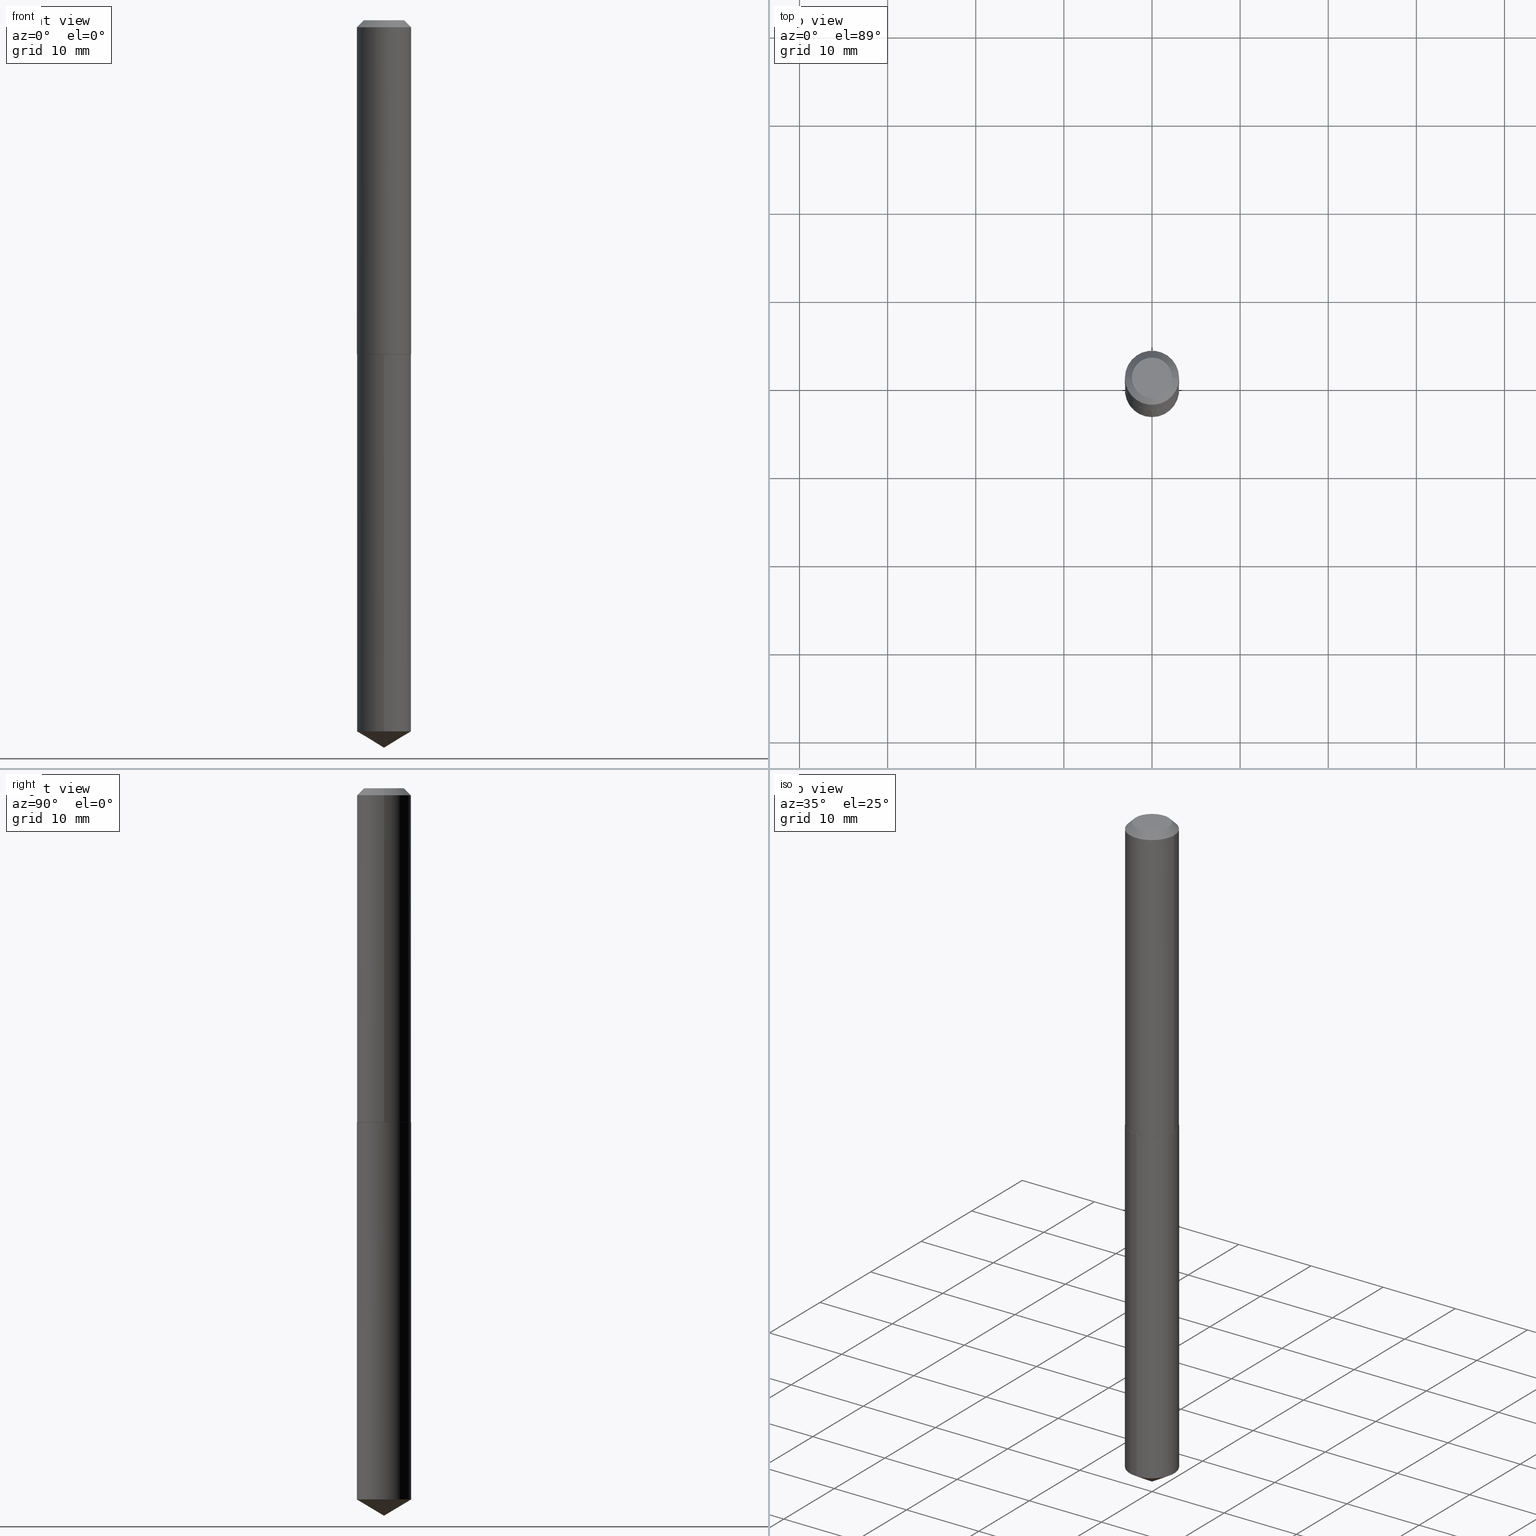
[diagram: canonical four-view strip — front | top / right | iso, engineering-drawing reading convention]
A machine part, canonical four-view strip (front | top / right | iso — engineering-drawing reading convention). The complete STEP part file that produces these views, byte-faithful:
ISO-10303-21;
HEADER;
FILE_DESCRIPTION (( 'STEP AP203' ),
    '1' );
FILE_NAME ('57173.STEP',
    '2024-04-22T23:23:38',
    ( '' ),
    ( '' ),
    'SwSTEP 2.0',
    'SolidWorks 2023',
    '' );
FILE_SCHEMA (( 'CONFIG_CONTROL_DESIGN' ));
ENDSEC;

DATA;
#1 =( GEOMETRIC_REPRESENTATION_CONTEXT ( 3 ) GLOBAL_UNCERTAINTY_ASSIGNED_CONTEXT ( ( #226 ) ) GLOBAL_UNIT_ASSIGNED_CONTEXT ( ( #97, #183, #374 ) ) REPRESENTATION_CONTEXT ( 'NONE', 'WORKASPACE' ) );
#2 = EDGE_CURVE ( 'NONE', #210, #283, #114, .T. ) ;
#3 = FACE_OUTER_BOUND ( 'NONE', #156, .T. ) ;
#4 = DIRECTION ( 'NONE',  ( 2.445468806185136597E-29, -3.491481338843145583E-15, -1.000000000000000000 ) ) ;
#5 = FACE_OUTER_BOUND ( 'NONE', #345, .T. ) ;
#6 = CIRCLE ( 'NONE', #317, 0.08975000000000001033 ) ;
#7 = EDGE_CURVE ( 'NONE', #283, #144, #314, .T. ) ;
#8 = ORIENTED_EDGE ( 'NONE', *, *, #30, .T. ) ;
#9 = COORDINATED_UNIVERSAL_TIME_OFFSET ( 5, 0, .BEHIND. ) ;
#10 = LOCAL_TIME ( 19, 23, 38.00000000000000000, #9 ) ;
#11 = CALENDAR_DATE ( 2024, 22, 4 ) ;
#12 = APPROVAL_STATUS ( 'not_yet_approved' ) ;
#13 = APPROVAL_PERSON_ORGANIZATION ( #151, #273, #347 ) ;
#14 = ORIENTED_EDGE ( 'NONE', *, *, #297, .F. ) ;
#15 = EDGE_CURVE ( 'NONE', #282, #213, #17, .T. ) ;
#16 = VECTOR ( 'NONE', #373, 39.37007874015748143 ) ;
#17 = LINE ( 'NONE', #342, #279 ) ;
#18 = CC_DESIGN_PERSON_AND_ORGANIZATION_ASSIGNMENT ( #23, #91, ( #34 ) ) ;
#19 = PERSON_AND_ORGANIZATION ( #383, #200 ) ;
#20 = DIRECTION ( 'NONE',  ( -6.982962677686264344E-15, -1.000000000000000000, 4.515451229197129137E-15 ) ) ;
#21 = ORIENTED_EDGE ( 'NONE', *, *, #15, .F. ) ;
#22 = PLANE ( 'NONE',  #338 ) ;
#23 = PERSON_AND_ORGANIZATION ( #383, #200 ) ;
#24 = ORIENTED_EDGE ( 'NONE', *, *, #58, .T. ) ;
#25 = CONICAL_SURFACE ( 'NONE', #222, 0.1210000000000000242, 0.7853981633974452814 ) ;
#26 = CARTESIAN_POINT ( 'NONE',  ( 7.769800488265220170E-29, -1.109372332207538747E-14, -3.177295865097665484 ) ) ;
#27 = SECURITY_CLASSIFICATION ( '', '', #355 ) ;
#28 = DIRECTION ( 'NONE',  ( -0.7071067811865715536, 7.493145998870439357E-15, 0.7071067811865232589 ) ) ;
#29 = DIRECTION ( 'NONE',  ( 1.000000000000000000, -6.982962677686266711E-15, 0.000000000000000000 ) ) ;
#30 = EDGE_CURVE ( 'NONE', #299, #292, #259, .T. ) ;
#31 = AXIS2_PLACEMENT_3D ( 'NONE', #42, #4, #334 ) ;
#32 = AXIS2_PLACEMENT_3D ( 'NONE', #157, #128, #242 ) ;
#33 = EDGE_CURVE ( 'NONE', #292, #118, #84, .T. ) ;
#34 = PRODUCT_DEFINITION_FORMATION_WITH_SPECIFIED_SOURCE ( 'ANY', '', #255, .NOT_KNOWN. ) ;
#35 = LINE ( 'NONE', #36, #366 ) ;
#36 = CARTESIAN_POINT ( 'NONE',  ( -0.1210000000000000242, 7.358296921611893922E-16, -0.03125000000000020123 ) ) ;
#37 = CLOSED_SHELL ( 'NONE', ( #330, #47, #343, #386, #356, #178, #349, #160 ) ) ;
#38 = CARTESIAN_POINT ( 'NONE',  ( 3.648639458828223995E-29, -5.209290157553973331E-15, -1.491999999999999993 ) ) ;
#39 = AXIS2_PLACEMENT_3D ( 'NONE', #38, #46, #77 ) ;
#40 = MANIFOLD_SOLID_BREP ( 'Body-Move/Copy2[1]', #205 ) ;
#41 = CYLINDRICAL_SURFACE ( 'NONE', #332, 0.1210000000000000103 ) ;
#42 = CARTESIAN_POINT ( 'NONE',  ( 7.642090019328600035E-31, -1.091087918388489897E-16, -0.03125000000000020123 ) ) ;
#43 = ORIENTED_EDGE ( 'NONE', *, *, #197, .T. ) ;
#44 = CARTESIAN_POINT ( 'NONE',  ( 3.647416724425131194E-29, -5.207544416884551827E-15, -1.491500000000000270 ) ) ;
#45 = CIRCLE ( 'NONE', #103, 0.1210000000000000103 ) ;
#46 = DIRECTION ( 'NONE',  ( -2.445363520308743340E-29, 3.491632114210640844E-15, 1.000000000000000000 ) ) ;
#47 = ADVANCED_FACE ( 'NONE', ( #316 ), #380, .T. ) ;
#48 = ORIENTED_EDGE ( 'NONE', *, *, #2, .F. ) ;
#49 = PERSON_AND_ORGANIZATION_ROLE ( 'design_owner' ) ;
#50 = DIRECTION ( 'NONE',  ( -2.445468806185136877E-29, 3.491481338843145188E-15, 1.000000000000000000 ) ) ;
#51 = CARTESIAN_POINT ( 'NONE',  ( 0.1210000000000000242, -9.392290495692044923E-16, -0.03125000000000020123 ) ) ;
#52 = CC_DESIGN_DATE_AND_TIME_ASSIGNMENT ( #321, #148, ( #27 ) ) ;
#53 = APPLICATION_CONTEXT ( 'configuration controlled 3d designs of mechanical parts and assemblies' ) ;
#54 = AXIS2_PLACEMENT_3D ( 'NONE', #305, #363, #284 ) ;
#55 = ORIENTED_EDGE ( 'NONE', *, *, #258, .F. ) ;
#56 = VERTEX_POINT ( 'NONE', #74 ) ;
#57 = VERTEX_POINT ( 'NONE', #221 ) ;
#58 = EDGE_CURVE ( 'NONE', #282, #292, #300, .T. ) ;
#59 = CC_DESIGN_PERSON_AND_ORGANIZATION_ASSIGNMENT ( #19, #376, ( #34 ) ) ;
#60 = COORDINATED_UNIVERSAL_TIME_OFFSET ( 5, 0, .BEHIND. ) ;
#61 = DIRECTION ( 'NONE',  ( -2.445468806185136597E-29, 3.491481338843145583E-15, 1.000000000000000000 ) ) ;
#62 = AXIS2_PLACEMENT_3D ( 'NONE', #102, #219, #327 ) ;
#63 = FACE_OUTER_BOUND ( 'NONE', #133, .T. ) ;
#64 = DIRECTION ( 'NONE',  ( 2.445363520308742500E-29, -3.491632114210641238E-15, -1.000000000000000000 ) ) ;
#65 = DIRECTION ( 'NONE',  ( 1.000000000000000000, -6.982962677686265133E-15, 0.000000000000000000 ) ) ;
#66 = CYLINDRICAL_SURFACE ( 'NONE', #192, 0.1210000000000001075 ) ;
#67 = DATE_AND_TIME ( #141, #10 ) ;
#68 = CARTESIAN_POINT ( 'NONE',  ( 3.648639458828223995E-29, -5.209290157553973331E-15, -1.491999999999999993 ) ) ;
#69 = CARTESIAN_POINT ( 'NONE',  ( 3.648639458828223995E-29, -5.209290157553973331E-15, -1.491999999999999993 ) ) ;
#70 = DIRECTION ( 'NONE',  ( -2.445468806185136597E-29, 3.491481338843145583E-15, 1.000000000000000000 ) ) ;
#71 = CARTESIAN_POINT ( 'NONE',  ( 0.1210000000000001907, -6.052482900884591109E-15, -1.491500000000000270 ) ) ;
#72 = FACE_OUTER_BOUND ( 'NONE', #368, .T. ) ;
#73 = CARTESIAN_POINT ( 'NONE',  ( 0.1210000000000000242, -9.540472758388873963E-16, -0.03125000000000020123 ) ) ;
#74 = CARTESIAN_POINT ( 'NONE',  ( -0.1210000000000001907, -4.347787706614829839E-15, -1.491500000000000270 ) ) ;
#75 = ORIENTED_EDGE ( 'NONE', *, *, #7, .F. ) ;
#76 = FACE_OUTER_BOUND ( 'NONE', #119, .T. ) ;
#77 = DIRECTION ( 'NONE',  ( -6.982962677686264344E-15, -1.000000000000000000, 4.515451229197129137E-15 ) ) ;
#78 = APPROVAL_STATUS ( 'not_yet_approved' ) ;
#79 = COORDINATED_UNIVERSAL_TIME_OFFSET ( 5, 0, .BEHIND. ) ;
#80 = AXIS2_PLACEMENT_3D ( 'NONE', #388, #130, #109 ) ;
#81 = EDGE_LOOP ( 'NONE', ( #337, #298, #353, #48 ) ) ;
#82 = MECHANICAL_CONTEXT ( 'NONE', #211, 'mechanical' ) ;
#83 = CARTESIAN_POINT ( 'NONE',  ( 0.1210000000000001907, -6.052482900884591109E-15, -1.491500000000000270 ) ) ;
#84 = LINE ( 'NONE', #231, #256 ) ;
#85 = ORIENTED_EDGE ( 'NONE', *, *, #33, .F. ) ;
#86 = CARTESIAN_POINT ( 'NONE',  ( -0.1210000000000000242, -1.798569894091978081E-15, -0.03125000000000020123 ) ) ;
#87 = CIRCLE ( 'NONE', #246, 0.1210000000000001907 ) ;
#88 = ORIENTED_EDGE ( 'NONE', *, *, #33, .T. ) ;
#89 = ADVANCED_FACE ( 'NONE', ( #63 ), #167, .T. ) ;
#90 = PRODUCT_DEFINITION ( 'UNKNOWN', '', #34, #126 ) ;
#91 = PERSON_AND_ORGANIZATION_ROLE ( 'design_supplier' ) ;
#92 = DIRECTION ( 'NONE',  ( 6.090539988449780802E-15, 0.8571673007021143320, 0.5150380749100504918 ) ) ;
#93 = CIRCLE ( 'NONE', #385, 0.08975000000000001033 ) ;
#94 = VERTEX_POINT ( 'NONE', #86 ) ;
#95 = DIRECTION ( 'NONE',  ( -2.445468806185136597E-29, 3.491481338843145583E-15, 1.000000000000000000 ) ) ;
#96 = ORIENTED_EDGE ( 'NONE', *, *, #58, .F. ) ;
#97 =( CONVERSION_BASED_UNIT ( 'INCH', #237 ) LENGTH_UNIT ( ) NAMED_UNIT ( #291 ) );
#98 = CARTESIAN_POINT ( 'NONE',  ( 3.648639458828223995E-29, -5.209290157553973331E-15, -1.491999999999999993 ) ) ;
#99 = CARTESIAN_POINT ( 'NONE',  ( 7.642090019328600035E-31, -1.091087918388489897E-16, -0.03125000000000020123 ) ) ;
#100 = DIRECTION ( 'NONE',  ( 1.000000000000000000, -6.982962677686265922E-15, 0.000000000000000000 ) ) ;
#101 = LOCAL_TIME ( 19, 23, 38.00000000000000000, #60 ) ;
#102 = CARTESIAN_POINT ( 'NONE',  ( 3.648639458828223995E-29, -5.209290157553973331E-15, -1.491999999999999993 ) ) ;
#103 = AXIS2_PLACEMENT_3D ( 'NONE', #69, #272, #276 ) ;
#104 = EDGE_CURVE ( 'NONE', #108, #57, #6, .T. ) ;
#105 = CALENDAR_DATE ( 2024, 22, 4 ) ;
#106 = DIRECTION ( 'NONE',  ( 1.000000000000000000, -6.982962677686266711E-15, 0.000000000000000000 ) ) ;
#107 = VECTOR ( 'NONE', #203, 39.37007874015748854 ) ;
#108 = VERTEX_POINT ( 'NONE', #377 ) ;
#109 = DIRECTION ( 'NONE',  ( 1.000000000000000000, -6.982962677686265922E-15, 4.876176775795935793E-29 ) ) ;
#110 = ORIENTED_EDGE ( 'NONE', *, *, #241, .T. ) ;
#111 = VECTOR ( 'NONE', #115, 39.37007874015748854 ) ;
#112 = APPROVAL ( #12, 'UNSPECIFIED' ) ;
#113 = AXIS2_PLACEMENT_3D ( 'NONE', #177, #277, #106 ) ;
#114 = LINE ( 'NONE', #83, #107 ) ;
#115 = DIRECTION ( 'NONE',  ( -5.985567269335945224E-15, -0.8571673007021107793, 0.5150380749100564870 ) ) ;
#116 = DIRECTION ( 'NONE',  ( -2.445363520308743340E-29, 3.491632114210640844E-15, 1.000000000000000000 ) ) ;
#117 = PERSON_AND_ORGANIZATION ( #383, #200 ) ;
#118 = VERTEX_POINT ( 'NONE', #236 ) ;
#119 = EDGE_LOOP ( 'NONE', ( #176, #110, #341, #127 ) ) ;
#120 = ORIENTED_EDGE ( 'NONE', *, *, #286, .T. ) ;
#121 = DIRECTION ( 'NONE',  ( 1.000000000000000000, -6.982962677686267499E-15, 4.876187661634337776E-29 ) ) ;
#122 = DIRECTION ( 'NONE',  ( -0.7071067811865453523, 2.468850131082234184E-15, -0.7071067811865496822 ) ) ;
#123 = CC_DESIGN_DATE_AND_TIME_ASSIGNMENT ( #67, #135, ( #90 ) ) ;
#124 = CARTESIAN_POINT ( 'NONE',  ( -5.989671091818642381E-48, 8.551662891793931527E-34, 2.449293598294701954E-19 ) ) ;
#125 = DIRECTION ( 'NONE',  ( -1.000000000000000000, 6.982962677686266711E-15, 0.000000000000000000 ) ) ;
#126 = DESIGN_CONTEXT ( 'detailed design', #53, 'design' ) ;
#127 = ORIENTED_EDGE ( 'NONE', *, *, #361, .F. ) ;
#128 = DIRECTION ( 'NONE',  ( -2.445468806185136597E-29, 3.491481338843145583E-15, 1.000000000000000000 ) ) ;
#129 = CC_DESIGN_PERSON_AND_ORGANIZATION_ASSIGNMENT ( #215, #328, ( #27 ) ) ;
#130 = DIRECTION ( 'NONE',  ( -2.438088387897960049E-29, 3.491481338843145188E-15, 1.000000000000000000 ) ) ;
#131 = CARTESIAN_POINT ( 'NONE',  ( -2.994835545909321190E-48, 4.275831445896965764E-34, 1.224646799147350977E-19 ) ) ;
#132 = CARTESIAN_POINT ( 'NONE',  ( 0.000000000000000000, 0.000000000000000000, 0.000000000000000000 ) ) ;
#133 = EDGE_LOOP ( 'NONE', ( #21, #24, #88, #171 ) ) ;
#134 = CARTESIAN_POINT ( 'NONE',  ( 3.647416724425131194E-29, -5.207544416884551827E-15, -1.491500000000000270 ) ) ;
#135 = DATE_TIME_ROLE ( 'creation_date' ) ;
#136 = EDGE_CURVE ( 'NONE', #94, #144, #301, .T. ) ;
#137 = AXIS2_PLACEMENT_3D ( 'NONE', #220, #227, #20 ) ;
#138 = AXIS2_PLACEMENT_3D ( 'NONE', #175, #224, #143 ) ;
#139 = CIRCLE ( 'NONE', #240, 0.1205000000000002597 ) ;
#140 = APPROVAL_PERSON_ORGANIZATION ( #117, #112, #172 ) ;
#141 = CALENDAR_DATE ( 2024, 22, 4 ) ;
#142 = DATE_AND_TIME ( #11, #290 ) ;
#143 = DIRECTION ( 'NONE',  ( 1.000000000000000000, 0.000000000000000000, 0.000000000000000000 ) ) ;
#144 = VERTEX_POINT ( 'NONE', #73 ) ;
#145 = AXIS2_PLACEMENT_3D ( 'NONE', #98, #249, #188 ) ;
#146 = COORDINATED_UNIVERSAL_TIME_OFFSET ( 5, 0, .BEHIND. ) ;
#147 = DIRECTION ( 'NONE',  ( -2.445363520308743060E-29, 3.491632114210641238E-15, 1.000000000000000000 ) ) ;
#148 = DATE_TIME_ROLE ( 'classification_date' ) ;
#149 = FACE_OUTER_BOUND ( 'NONE', #181, .T. ) ;
#150 = APPROVAL ( #78, 'UNSPECIFIED' ) ;
#151 = PERSON_AND_ORGANIZATION ( #383, #200 ) ;
#152 = ORIENTED_EDGE ( 'NONE', *, *, #159, .T. ) ;
#153 = VECTOR ( 'NONE', #50, 39.37007874015748143 ) ;
#154 = AXIS2_PLACEMENT_3D ( 'NONE', #99, #324, #29 ) ;
#155 = DIRECTION ( 'NONE',  ( 2.445468806185136597E-29, -3.491481338843145583E-15, -1.000000000000000000 ) ) ;
#156 = EDGE_LOOP ( 'NONE', ( #201, #152 ) ) ;
#157 = CARTESIAN_POINT ( 'NONE',  ( 3.647416724425131194E-29, -5.207544416884551827E-15, -1.491500000000000270 ) ) ;
#158 = AXIS2_PLACEMENT_3D ( 'NONE', #214, #358, #362 ) ;
#159 = EDGE_CURVE ( 'NONE', #57, #108, #93, .T. ) ;
#160 = ADVANCED_FACE ( 'NONE', ( #3 ), #280, .F. ) ;
#161 = FACE_OUTER_BOUND ( 'NONE', #331, .T. ) ;
#162 = ADVANCED_BREP_SHAPE_REPRESENTATION ( '57173', ( #40, #204, #138 ), #1 ) ;
#163 = LINE ( 'NONE', #186, #233 ) ;
#164 = ADVANCED_FACE ( 'NONE', ( #360 ), #165, .T. ) ;
#165 = CONICAL_SURFACE ( 'NONE', #54, 65.52281426576853107, 1.029744258676655200 ) ;
#166 = DIRECTION ( 'NONE',  ( -2.445468806185136597E-29, 3.491481338843145583E-15, 1.000000000000000000 ) ) ;
#167 = CYLINDRICAL_SURFACE ( 'NONE', #39, 0.1210000000000000103 ) ;
#168 = AXIS2_PLACEMENT_3D ( 'NONE', #243, #95, #100 ) ;
#169 = DIRECTION ( 'NONE',  ( -2.445468806185136597E-29, 3.491481338843145583E-15, 1.000000000000000000 ) ) ;
#170 = APPROVAL_DATE_TIME ( #193, #273 ) ;
#171 = ORIENTED_EDGE ( 'NONE', *, *, #364, .F. ) ;
#172 = APPROVAL_ROLE ( '' ) ;
#173 = EDGE_LOOP ( 'NONE', ( #43, #228, #378, #85 ) ) ;
#174 = ORIENTED_EDGE ( 'NONE', *, *, #197, .F. ) ;
#175 = CARTESIAN_POINT ( 'NONE',  ( 0.000000000000000000, 0.000000000000000000, 0.000000000000000000 ) ) ;
#176 = ORIENTED_EDGE ( 'NONE', *, *, #270, .F. ) ;
#177 = CARTESIAN_POINT ( 'NONE',  ( 7.642090019328600035E-31, -1.091087918388489897E-16, -0.03125000000000020123 ) ) ;
#178 = ADVANCED_FACE ( 'NONE', ( #5 ), #66, .T. ) ;
#179 = CARTESIAN_POINT ( 'NONE',  ( 8.597567102697990011E-16, 0.1209999999999947923, -1.492000000000000659 ) ) ;
#180 = LOCAL_TIME ( 19, 23, 38.00000000000000000, #146 ) ;
#181 = EDGE_LOOP ( 'NONE', ( #232, #370 ) ) ;
#182 = EDGE_CURVE ( 'NONE', #57, #144, #302, .T. ) ;
#183 =( NAMED_UNIT ( * ) PLANE_ANGLE_UNIT ( ) SI_UNIT ( $, .RADIAN. ) );
#184 = DIRECTION ( 'NONE',  ( 1.000000000000000000, -6.982962677686266711E-15, 4.876176775795935793E-29 ) ) ;
#185 = CIRCLE ( 'NONE', #32, 0.1210000000000001907 ) ;
#186 = CARTESIAN_POINT ( 'NONE',  ( -0.1210000000000001075, 8.597567102697219885E-16, -5.951911459208441511E-30 ) ) ;
#187 = CARTESIAN_POINT ( 'NONE',  ( -8.449384839999605928E-16, -0.1210000000000111126, -3.177295865097664596 ) ) ;
#188 = DIRECTION ( 'NONE',  ( -6.982962677686264344E-15, -1.000000000000000000, 4.515451229197129137E-15 ) ) ;
#189 = ORIENTED_EDGE ( 'NONE', *, *, #297, .T. ) ;
#190 = CC_DESIGN_PERSON_AND_ORGANIZATION_ASSIGNMENT ( #315, #49, ( #255 ) ) ;
#191 = DIRECTION ( 'NONE',  ( -2.445468806185136597E-29, 3.491481338843145583E-15, 1.000000000000000000 ) ) ;
#192 = AXIS2_PLACEMENT_3D ( 'NONE', #218, #70, #184 ) ;
#193 = DATE_AND_TIME ( #105, #101 ) ;
#194 = DIRECTION ( 'NONE',  ( 1.000000000000000000, -6.982962677686265922E-15, 0.000000000000000000 ) ) ;
#195 = ORIENTED_EDGE ( 'NONE', *, *, #182, .F. ) ;
#196 = APPROVAL_ROLE ( '' ) ;
#197 = EDGE_CURVE ( 'NONE', #292, #282, #306, .T. ) ;
#198 = PERSON_AND_ORGANIZATION_ROLE ( 'creator' ) ;
#199 = VECTOR ( 'NONE', #28, 39.37007874015748854 ) ;
#200 = ORGANIZATION ( 'UNSPECIFIED', 'UNSPECIFIED', '' ) ;
#201 = ORIENTED_EDGE ( 'NONE', *, *, #104, .T. ) ;
#202 = ADVANCED_FACE ( 'NONE', ( #149 ), #22, .F. ) ;
#203 = DIRECTION ( 'NONE',  ( 0.7071067811865715536, -2.468850131082509496E-15, 0.7071067811865232589 ) ) ;
#204 = MANIFOLD_SOLID_BREP ( 'Body-Move/Copy2[2]', #37 ) ;
#205 = CLOSED_SHELL ( 'NONE', ( #325, #346, #164, #89, #202 ) ) ;
#206 = DIRECTION ( 'NONE',  ( -2.445363520308743060E-29, 3.491632114210641238E-15, 1.000000000000000000 ) ) ;
#207 = DIRECTION ( 'NONE',  ( -2.445363520308743340E-29, 3.491632114210640844E-15, 1.000000000000000000 ) ) ;
#208 = ORIENTED_EDGE ( 'NONE', *, *, #30, .F. ) ;
#209 = CALENDAR_DATE ( 2024, 22, 4 ) ;
#210 = VERTEX_POINT ( 'NONE', #390 ) ;
#211 = APPLICATION_CONTEXT ( 'configuration controlled 3d designs of mechanical parts and assemblies' ) ;
#212 = CIRCLE ( 'NONE', #62, 0.1205000000000002597 ) ;
#213 = VERTEX_POINT ( 'NONE', #179 ) ;
#214 = CARTESIAN_POINT ( 'NONE',  ( -8.832656581533292492E-28, 1.261182518537991927E-13, 36.12007874015748143 ) ) ;
#215 = PERSON_AND_ORGANIZATION ( #383, #200 ) ;
#216 = PLANE ( 'NONE',  #80 ) ;
#217 = CC_DESIGN_PERSON_AND_ORGANIZATION_ASSIGNMENT ( #293, #198, ( #90 ) ) ;
#218 = CARTESIAN_POINT ( 'NONE',  ( 0.000000000000000000, 0.000000000000000000, 0.000000000000000000 ) ) ;
#219 = DIRECTION ( 'NONE',  ( -2.445468806185136597E-29, 3.491481338843145583E-15, 1.000000000000000000 ) ) ;
#220 = CARTESIAN_POINT ( 'NONE',  ( 7.769800488265220170E-29, -1.109372332207538747E-14, -3.177295865097665484 ) ) ;
#221 = CARTESIAN_POINT ( 'NONE',  ( 0.08975000000000001033, -7.774793724345997613E-16, 2.449293598343795834E-19 ) ) ;
#222 = AXIS2_PLACEMENT_3D ( 'NONE', #384, #155, #125 ) ;
#223 = COORDINATED_UNIVERSAL_TIME_OFFSET ( 5, 0, .BEHIND. ) ;
#224 = DIRECTION ( 'NONE',  ( 0.000000000000000000, 0.000000000000000000, 1.000000000000000000 ) ) ;
#225 = ORIENTED_EDGE ( 'NONE', *, *, #381, .F. ) ;
#226 = UNCERTAINTY_MEASURE_WITH_UNIT (LENGTH_MEASURE( 1.000000000000000082E-05 ), #97, 'distance_accuracy_value', 'NONE');
#227 = DIRECTION ( 'NONE',  ( -2.445363520308743340E-29, 3.491632114210640844E-15, 1.000000000000000000 ) ) ;
#228 = ORIENTED_EDGE ( 'NONE', *, *, #15, .T. ) ;
#229 = PRODUCT_RELATED_PRODUCT_CATEGORY ( 'detail', '', ( #255 ) ) ;
#230 = CC_DESIGN_APPROVAL ( #150, ( #34 ) ) ;
#231 = CARTESIAN_POINT ( 'NONE',  ( -8.449384840000016136E-16, -0.1210000000000052145, -1.491999999999999549 ) ) ;
#232 = ORIENTED_EDGE ( 'NONE', *, *, #322, .T. ) ;
#233 = VECTOR ( 'NONE', #329, 39.37007874015748143 ) ;
#234 = ORIENTED_EDGE ( 'NONE', *, *, #308, .T. ) ;
#235 = ORIENTED_EDGE ( 'NONE', *, *, #361, .T. ) ;
#236 = CARTESIAN_POINT ( 'NONE',  ( -8.449384840000016136E-16, -0.1210000000000052145, -1.491999999999999549 ) ) ;
#237 = LENGTH_MEASURE_WITH_UNIT ( LENGTH_MEASURE( 0.02539999999999999897 ), #333 );
#238 = PRODUCT_DEFINITION_SHAPE ( 'NONE', 'NONE',  #90 ) ;
#239 = CARTESIAN_POINT ( 'NONE',  ( 7.947431441003416417E-29, -1.134780437118458462E-14, -3.250000000000000000 ) ) ;
#240 = AXIS2_PLACEMENT_3D ( 'NONE', #68, #244, #65 ) ;
#241 = EDGE_CURVE ( 'NONE', #257, #210, #139, .T. ) ;
#242 = DIRECTION ( 'NONE',  ( 1.000000000000000000, -6.982962677686265922E-15, 0.000000000000000000 ) ) ;
#243 = CARTESIAN_POINT ( 'NONE',  ( 3.647416724425131194E-29, -5.207544416884551827E-15, -1.491500000000000270 ) ) ;
#244 = DIRECTION ( 'NONE',  ( -2.445468806185136597E-29, 3.491481338843145583E-15, 1.000000000000000000 ) ) ;
#245 = DIRECTION ( 'NONE',  ( 2.438088387897960049E-29, -3.491481338843145188E-15, -1.000000000000000000 ) ) ;
#246 = AXIS2_PLACEMENT_3D ( 'NONE', #134, #191, #357 ) ;
#247 = DIRECTION ( 'NONE',  ( 6.982962677686265922E-15, 1.000000000000000000, -3.491632114210641238E-15 ) ) ;
#248 = DIRECTION ( 'NONE',  ( -1.000000000000000000, 6.982962677686265922E-15, -4.876176775795935793E-29 ) ) ;
#249 = DIRECTION ( 'NONE',  ( -2.445363520308743340E-29, 3.491632114210640844E-15, 1.000000000000000000 ) ) ;
#250 = DIRECTION ( 'NONE',  ( 1.000000000000000000, -6.982962677686267499E-15, 4.876187661634337776E-29 ) ) ;
#251 = CONICAL_SURFACE ( 'NONE', #158, 65.52281426576853107, 1.029744258676655200 ) ;
#252 = ORIENTED_EDGE ( 'NONE', *, *, #136, .F. ) ;
#253 = CONICAL_SURFACE ( 'NONE', #168, 0.1210000000000001907, 0.7853981633974824739 ) ;
#254 = ORIENTED_EDGE ( 'NONE', *, *, #266, .F. ) ;
#255 = PRODUCT ( '57173', '57173', '', ( #82 ) ) ;
#256 = VECTOR ( 'NONE', #206, 39.37007874015748143 ) ;
#257 = VERTEX_POINT ( 'NONE', #303 ) ;
#258 = EDGE_CURVE ( 'NONE', #210, #257, #212, .T. ) ;
#259 = LINE ( 'NONE', #372, #111 ) ;
#260 = CARTESIAN_POINT ( 'NONE',  ( 3.648639458828223995E-29, -5.209290157553973331E-15, -1.491999999999999993 ) ) ;
#261 = APPROVAL_STATUS ( 'not_yet_approved' ) ;
#262 = ORIENTED_EDGE ( 'NONE', *, *, #241, .F. ) ;
#263 = CARTESIAN_POINT ( 'NONE',  ( 3.648639458828223995E-29, -5.209290157553973331E-15, -1.491999999999999993 ) ) ;
#264 = DIRECTION ( 'NONE',  ( -6.982962677686264344E-15, -1.000000000000000000, 4.515451229197129137E-15 ) ) ;
#265 = ORIENTED_EDGE ( 'NONE', *, *, #7, .T. ) ;
#266 = EDGE_CURVE ( 'NONE', #56, #94, #163, .T. ) ;
#267 = CONICAL_SURFACE ( 'NONE', #31, 0.1210000000000000242, 0.7853981633974452814 ) ;
#268 = DIRECTION ( 'NONE',  ( -6.982962677686264344E-15, -1.000000000000000000, 4.515451229197129137E-15 ) ) ;
#269 = ORIENTED_EDGE ( 'NONE', *, *, #381, .T. ) ;
#270 = EDGE_CURVE ( 'NONE', #257, #56, #304, .T. ) ;
#271 = ORIENTED_EDGE ( 'NONE', *, *, #136, .T. ) ;
#272 = DIRECTION ( 'NONE',  ( -2.445363520308743340E-29, 3.491632114210640844E-15, 1.000000000000000000 ) ) ;
#273 = APPROVAL ( #261, 'UNSPECIFIED' ) ;
#274 = CIRCLE ( 'NONE', #145, 0.1210000000000000103 ) ;
#275 = DIRECTION ( 'NONE',  ( 1.000000000000000000, -6.982962677686266711E-15, 4.876176775795935793E-29 ) ) ;
#276 = DIRECTION ( 'NONE',  ( -6.982962677686264344E-15, -1.000000000000000000, 4.515451229197129137E-15 ) ) ;
#277 = DIRECTION ( 'NONE',  ( -2.445468806185136597E-29, 3.491481338843145583E-15, 1.000000000000000000 ) ) ;
#278 = CARTESIAN_POINT ( 'NONE',  ( 8.597567102697989025E-16, 0.1209999999999889081, -3.177295865097665928 ) ) ;
#279 = VECTOR ( 'NONE', #147, 39.37007874015748143 ) ;
#280 = PLANE ( 'NONE',  #352 ) ;
#281 = AXIS2_PLACEMENT_3D ( 'NONE', #26, #116, #268 ) ;
#282 = VERTEX_POINT ( 'NONE', #278 ) ;
#283 = VERTEX_POINT ( 'NONE', #71 ) ;
#284 = DIRECTION ( 'NONE',  ( -6.982962677686265922E-15, -1.000000000000000000, 3.468864327941589087E-15 ) ) ;
#285 = ORIENTED_EDGE ( 'NONE', *, *, #182, .T. ) ;
#286 = EDGE_CURVE ( 'NONE', #283, #56, #185, .T. ) ;
#287 = APPROVAL_DATE_TIME ( #319, #112 ) ;
#288 = LOCAL_TIME ( 19, 23, 38.00000000000000000, #79 ) ;
#289 = ORIENTED_EDGE ( 'NONE', *, *, #308, .F. ) ;
#290 = LOCAL_TIME ( 19, 23, 38.00000000000000000, #223 ) ;
#291 = DIMENSIONAL_EXPONENTS ( 1.000000000000000000, 0.000000000000000000, 0.000000000000000000, 0.000000000000000000, 0.000000000000000000, 0.000000000000000000, 0.000000000000000000 ) ;
#292 = VERTEX_POINT ( 'NONE', #187 ) ;
#293 = PERSON_AND_ORGANIZATION ( #383, #200 ) ;
#294 = ORIENTED_EDGE ( 'NONE', *, *, #266, .T. ) ;
#295 = VECTOR ( 'NONE', #92, 39.37007874015748854 ) ;
#296 = CARTESIAN_POINT ( 'NONE',  ( 0.1210000000000001075, -8.449384840000389859E-16, 5.900173898713087522E-30 ) ) ;
#297 = EDGE_CURVE ( 'NONE', #108, #94, #35, .T. ) ;
#298 = ORIENTED_EDGE ( 'NONE', *, *, #270, .T. ) ;
#299 = VERTEX_POINT ( 'NONE', #239 ) ;
#300 = CIRCLE ( 'NONE', #137, 0.1210000000000000103 ) ;
#301 = CIRCLE ( 'NONE', #113, 0.1210000000000000242 ) ;
#302 = LINE ( 'NONE', #51, #16 ) ;
#303 = CARTESIAN_POINT ( 'NONE',  ( -0.1205000000000002597, -4.350436933788940251E-15, -1.491999999999999993 ) ) ;
#304 = LINE ( 'NONE', #387, #199 ) ;
#305 = CARTESIAN_POINT ( 'NONE',  ( -8.832656581533292492E-28, 1.261182518537991927E-13, 36.12007874015748143 ) ) ;
#306 = CIRCLE ( 'NONE', #281, 0.1210000000000000103 ) ;
#307 = FACE_OUTER_BOUND ( 'NONE', #173, .T. ) ;
#308 = EDGE_CURVE ( 'NONE', #299, #282, #354, .T. ) ;
#309 = SHAPE_DEFINITION_REPRESENTATION ( #238, #162 ) ;
#310 = ORIENTED_EDGE ( 'NONE', *, *, #104, .F. ) ;
#311 = CIRCLE ( 'NONE', #154, 0.1210000000000000242 ) ;
#312 = APPROVAL_PERSON_ORGANIZATION ( #335, #150, #196 ) ;
#313 = CC_DESIGN_APPROVAL ( #273, ( #27 ) ) ;
#314 = LINE ( 'NONE', #296, #153 ) ;
#315 = PERSON_AND_ORGANIZATION ( #383, #200 ) ;
#316 = FACE_OUTER_BOUND ( 'NONE', #318, .T. ) ;
#317 = AXIS2_PLACEMENT_3D ( 'NONE', #124, #61, #121 ) ;
#318 = EDGE_LOOP ( 'NONE', ( #120, #294, #225, #75 ) ) ;
#319 = DATE_AND_TIME ( #344, #288 ) ;
#320 = DIRECTION ( 'NONE',  ( -2.445468806185136597E-29, 3.491481338843145583E-15, 1.000000000000000000 ) ) ;
#321 = DATE_AND_TIME ( #209, #180 ) ;
#322 = EDGE_CURVE ( 'NONE', #118, #213, #274, .T. ) ;
#323 = CARTESIAN_POINT ( 'NONE',  ( -5.989671091818642381E-48, 8.551662891793931527E-34, 2.449293598294701954E-19 ) ) ;
#324 = DIRECTION ( 'NONE',  ( -2.445468806185136597E-29, 3.491481338843145583E-15, 1.000000000000000000 ) ) ;
#325 = ADVANCED_FACE ( 'NONE', ( #307 ), #41, .T. ) ;
#326 = CONICAL_SURFACE ( 'NONE', #379, 0.1210000000000001907, 0.7853981633974824739 ) ;
#327 = DIRECTION ( 'NONE',  ( 1.000000000000000000, -6.982962677686265133E-15, 0.000000000000000000 ) ) ;
#328 = PERSON_AND_ORGANIZATION_ROLE ( 'classification_officer' ) ;
#329 = DIRECTION ( 'NONE',  ( -2.445468806185136877E-29, 3.491481338843145188E-15, 1.000000000000000000 ) ) ;
#330 = ADVANCED_FACE ( 'NONE', ( #389 ), #25, .T. ) ;
#331 = EDGE_LOOP ( 'NONE', ( #55, #262 ) ) ;
#332 = AXIS2_PLACEMENT_3D ( 'NONE', #260, #207, #264 ) ;
#333 =( LENGTH_UNIT ( ) NAMED_UNIT ( * ) SI_UNIT ( $, .METRE. ) );
#334 = DIRECTION ( 'NONE',  ( -1.000000000000000000, 6.982962677686266711E-15, 0.000000000000000000 ) ) ;
#335 = PERSON_AND_ORGANIZATION ( #383, #200 ) ;
#336 = APPLICATION_PROTOCOL_DEFINITION ( 'international standard', 'config_control_design', 1994, #53 ) ;
#337 = ORIENTED_EDGE ( 'NONE', *, *, #258, .T. ) ;
#338 = AXIS2_PLACEMENT_3D ( 'NONE', #263, #64, #247 ) ;
#339 = EDGE_LOOP ( 'NONE', ( #289, #8, #96 ) ) ;
#340 = APPLICATION_PROTOCOL_DEFINITION ( 'international standard', 'config_control_design', 1994, #211 ) ;
#341 = ORIENTED_EDGE ( 'NONE', *, *, #2, .T. ) ;
#342 = CARTESIAN_POINT ( 'NONE',  ( 8.597567102697576845E-16, 0.1209999999999947923, -1.492000000000000659 ) ) ;
#343 = ADVANCED_FACE ( 'NONE', ( #359 ), #253, .T. ) ;
#344 = CALENDAR_DATE ( 2024, 22, 4 ) ;
#345 = EDGE_LOOP ( 'NONE', ( #254, #235, #265, #252 ) ) ;
#346 = ADVANCED_FACE ( 'NONE', ( #371 ), #251, .T. ) ;
#347 = APPROVAL_ROLE ( '' ) ;
#348 = ORIENTED_EDGE ( 'NONE', *, *, #159, .F. ) ;
#349 = ADVANCED_FACE ( 'NONE', ( #72 ), #267, .T. ) ;
#350 = AXIS2_PLACEMENT_3D ( 'NONE', #132, #320, #275 ) ;
#351 = CARTESIAN_POINT ( 'NONE',  ( 7.947748368985415677E-29, -1.134735445748797822E-14, -3.250000000000000000 ) ) ;
#352 = AXIS2_PLACEMENT_3D ( 'NONE', #131, #245, #248 ) ;
#353 = ORIENTED_EDGE ( 'NONE', *, *, #286, .F. ) ;
#354 = LINE ( 'NONE', #351, #295 ) ;
#355 = SECURITY_CLASSIFICATION_LEVEL ( 'unclassified' ) ;
#356 = ADVANCED_FACE ( 'NONE', ( #76 ), #326, .T. ) ;
#357 = DIRECTION ( 'NONE',  ( 1.000000000000000000, -6.982962677686265922E-15, 0.000000000000000000 ) ) ;
#358 = DIRECTION ( 'NONE',  ( -2.445363520308743340E-29, 3.491632114210640844E-15, 1.000000000000000000 ) ) ;
#359 = FACE_OUTER_BOUND ( 'NONE', #81, .T. ) ;
#360 = FACE_OUTER_BOUND ( 'NONE', #339, .T. ) ;
#361 = EDGE_CURVE ( 'NONE', #56, #283, #87, .T. ) ;
#362 = DIRECTION ( 'NONE',  ( -6.982962677686265922E-15, -1.000000000000000000, 3.468864327941589087E-15 ) ) ;
#363 = DIRECTION ( 'NONE',  ( -2.445363520308743340E-29, 3.491632114210640844E-15, 1.000000000000000000 ) ) ;
#364 = EDGE_CURVE ( 'NONE', #213, #118, #45, .T. ) ;
#365 = EDGE_LOOP ( 'NONE', ( #208, #234, #174 ) ) ;
#366 = VECTOR ( 'NONE', #122, 39.37007874015748143 ) ;
#367 = CC_DESIGN_APPROVAL ( #112, ( #90 ) ) ;
#368 = EDGE_LOOP ( 'NONE', ( #195, #310, #189, #271 ) ) ;
#369 = APPROVAL_DATE_TIME ( #142, #150 ) ;
#370 = ORIENTED_EDGE ( 'NONE', *, *, #364, .T. ) ;
#371 = FACE_OUTER_BOUND ( 'NONE', #365, .T. ) ;
#372 = CARTESIAN_POINT ( 'NONE',  ( 7.947431441003416417E-29, -1.134780437118458462E-14, -3.250000000000000000 ) ) ;
#373 = DIRECTION ( 'NONE',  ( 0.7071067811865453523, -7.319954787623248157E-15, -0.7071067811865496822 ) ) ;
#374 =( NAMED_UNIT ( * ) SI_UNIT ( $, .STERADIAN. ) SOLID_ANGLE_UNIT ( ) );
#375 = EDGE_LOOP ( 'NONE', ( #348, #285, #269, #14 ) ) ;
#376 = PERSON_AND_ORGANIZATION_ROLE ( 'creator' ) ;
#377 = CARTESIAN_POINT ( 'NONE',  ( -0.08975000000000001033, 6.812752962417660252E-16, 2.449293598248967377E-19 ) ) ;
#378 = ORIENTED_EDGE ( 'NONE', *, *, #322, .F. ) ;
#379 = AXIS2_PLACEMENT_3D ( 'NONE', #44, #169, #194 ) ;
#380 = CYLINDRICAL_SURFACE ( 'NONE', #350, 0.1210000000000001075 ) ;
#381 = EDGE_CURVE ( 'NONE', #144, #94, #311, .T. ) ;
#382 = CC_DESIGN_SECURITY_CLASSIFICATION ( #27, ( #34 ) ) ;
#383 = PERSON ( 'UNSPECIFIED', 'UNSPECIFIED', 'UNSPECIFIED', ('UNSPECIFIED'), ('UNSPECIFIED'), ('UNSPECIFIED') ) ;
#384 = CARTESIAN_POINT ( 'NONE',  ( 7.642090019328600035E-31, -1.091087918388489897E-16, -0.03125000000000020123 ) ) ;
#385 = AXIS2_PLACEMENT_3D ( 'NONE', #323, #166, #250 ) ;
#386 = ADVANCED_FACE ( 'NONE', ( #161 ), #216, .F. ) ;
#387 = CARTESIAN_POINT ( 'NONE',  ( -0.1210000000000001907, -4.347787706614829839E-15, -1.491500000000000270 ) ) ;
#388 = CARTESIAN_POINT ( 'NONE',  ( 3.648639458828223995E-29, -5.209290157553973331E-15, -1.491999999999999993 ) ) ;
#389 = FACE_OUTER_BOUND ( 'NONE', #375, .T. ) ;
#390 = CARTESIAN_POINT ( 'NONE',  ( 0.1205000000000002597, -6.050737160215170394E-15, -1.491999999999999993 ) ) ;
ENDSEC;
END-ISO-10303-21;
